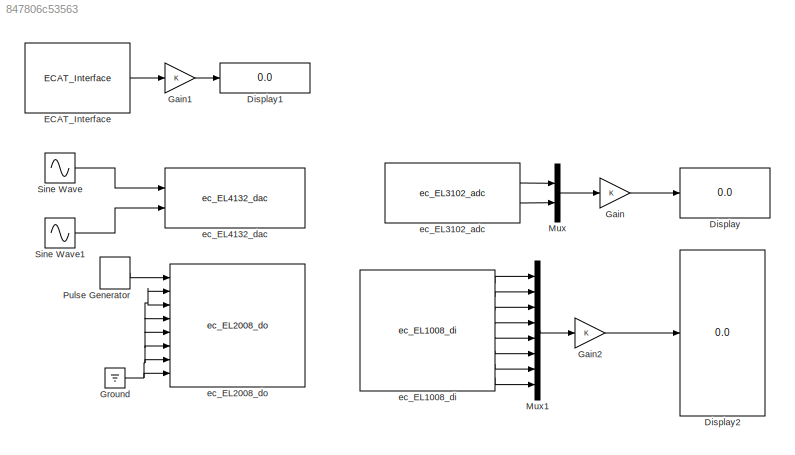
MODEL slx_847806c53563
KIND model
CONFIG AbsTol = auto
CONFIG FixedStep = 1/1000
CONFIG MaxStep = auto
CONFIG MinStep = auto
CONFIG RelTol = 1e-3
CONFIG SampleTimeConstraint = Unconstrained
CONFIG Solver = FixedStepDiscrete
CONFIG SolverMode = Auto
CONFIG SolverName = FixedStepDiscrete
CONFIG StartTime = 0.0
CONFIG StopTime = 60
BLOCK [Display] Display
  Decimation = 1
  Ports = [1]
BLOCK [Display] Display1
  Decimation = 1
  Ports = [1]
BLOCK [Display] Display2
  Decimation = 1
  Ports = [1]
BLOCK [Reference] ECAT_Interface  REF=SOEM_EtherCAT_Lib/ECAT_Interface
  Ports = [0, 1]
  Priority = 0
  SourceBlock = SOEM_EtherCAT_Lib/ECAT_Interface
BLOCK [Gain] Gain
  OutDataTypeStr = Inherit: Inherit via internal rule
  ParamDataTypeStr = Inherit: Inherit via internal rule
  SaturateOnIntegerOverflow = off
BLOCK [Gain] Gain1
  OutDataTypeStr = double
  ParamDataTypeStr = Inherit: Inherit via internal rule
  SaturateOnIntegerOverflow = off
BLOCK [Gain] Gain2
  OutDataTypeStr = Inherit: Inherit via internal rule
  ParamDataTypeStr = Inherit: Inherit via internal rule
  SaturateOnIntegerOverflow = off
BLOCK [Ground] Ground
BLOCK [Mux] Mux
  DisplayOption = bar
  Inputs = 2
  Ports = [2, 1]
BLOCK [Mux] Mux1
  DisplayOption = bar
  Inputs = 8
  Ports = [8, 1]
BLOCK [DiscretePulseGenerator] Pulse Generator
  Period = .5
  Ports = [0, 1]
  PulseType = Time based
  PulseWidth = 50
BLOCK [Sin] Sine Wave
  Amplitude = 10
  Frequency = 2*pi*.2
  Ports = [0, 1]
  SampleTime = 0
BLOCK [Sin] Sine Wave1
  Amplitude = 10
  Frequency = 2*pi*.2
  Phase = pi
  Ports = [0, 1]
  SampleTime = 0
BLOCK [Reference] ec_EL1008_di  REF=SOEM_EtherCAT_Lib/ec_EL1008_di
  Ports = [0, 8]
  SourceBlock = SOEM_EtherCAT_Lib/ec_EL1008_di
  SourceType = EL1008 di
BLOCK [Reference] ec_EL2008_do  REF=SOEM_EtherCAT_Lib/ec_EL2008_do
  Ports = [8]
  SourceBlock = SOEM_EtherCAT_Lib/ec_EL2008_do
  SourceType = EL2008 do
BLOCK [Reference] ec_EL3102_adc  REF=SOEM_EtherCAT_Lib/ec_EL3102_adc
  Ports = [0, 2]
  SourceBlock = SOEM_EtherCAT_Lib/ec_EL3102_adc
  SourceType = EL3102 adc
BLOCK [Reference] ec_EL4132_dac  REF=SOEM_EtherCAT_Lib/ec_EL4132_dac
  Ports = [2]
  SourceBlock = SOEM_EtherCAT_Lib/ec_EL4132_dac
  SourceType = EL4132 dac
LINE ECAT_Interface:1 -> Gain1:1
LINE Gain1:1 -> Display1:1
LINE Gain2:1 -> Display2:1
LINE Gain:1 -> Display:1
NET Ground:1 -> ec_EL2008_do:2, ec_EL2008_do:3, ec_EL2008_do:4, ec_EL2008_do:5, ec_EL2008_do:6, ec_EL2008_do:7, ec_EL2008_do:8
LINE Mux1:1 -> Gain2:1
LINE Mux:1 -> Gain:1
LINE Pulse Generator:1 -> ec_EL2008_do:1
LINE Sine Wave1:1 -> ec_EL4132_dac:2
LINE Sine Wave:1 -> ec_EL4132_dac:1
LINE ec_EL1008_di:1 -> Mux1:1
LINE ec_EL1008_di:2 -> Mux1:2
LINE ec_EL1008_di:3 -> Mux1:3
LINE ec_EL1008_di:4 -> Mux1:4
LINE ec_EL1008_di:5 -> Mux1:5
LINE ec_EL1008_di:6 -> Mux1:6
LINE ec_EL1008_di:7 -> Mux1:7
LINE ec_EL1008_di:8 -> Mux1:8
LINE ec_EL3102_adc:1 -> Mux:1
LINE ec_EL3102_adc:2 -> Mux:2
note: NET lines group one-source signal fan-out (src -> all destinations, sorted); 1:1 wires keep LINE
